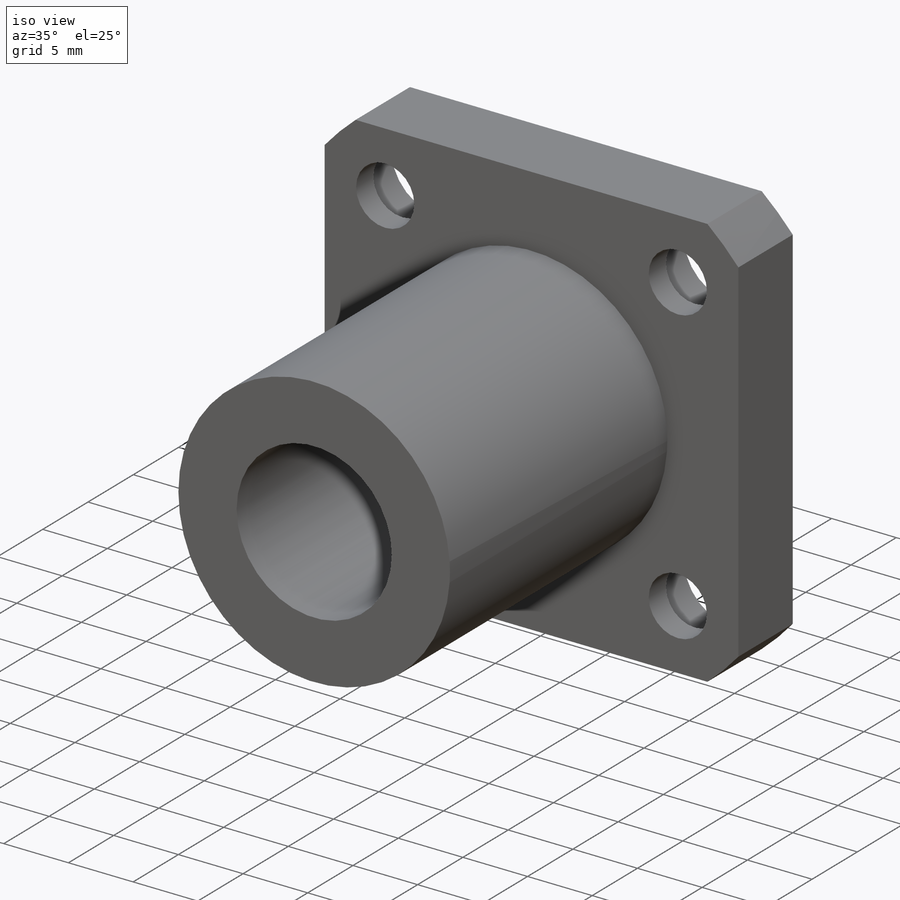
[diagram: iso view]
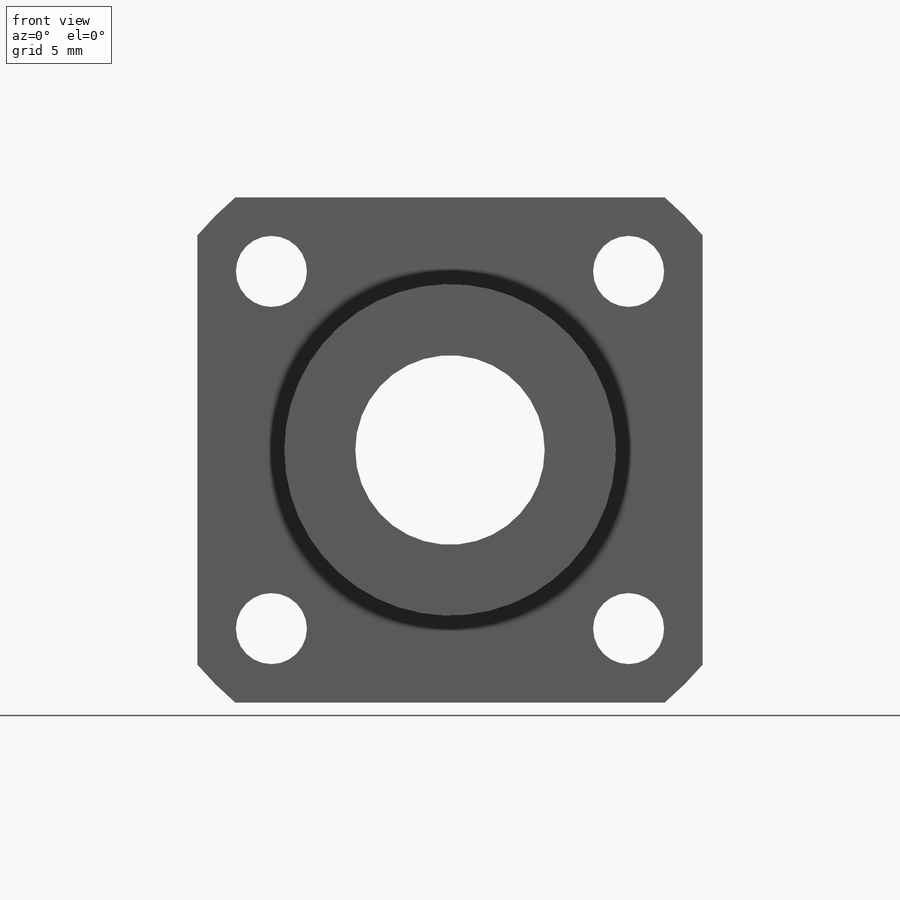
[diagram: front view]
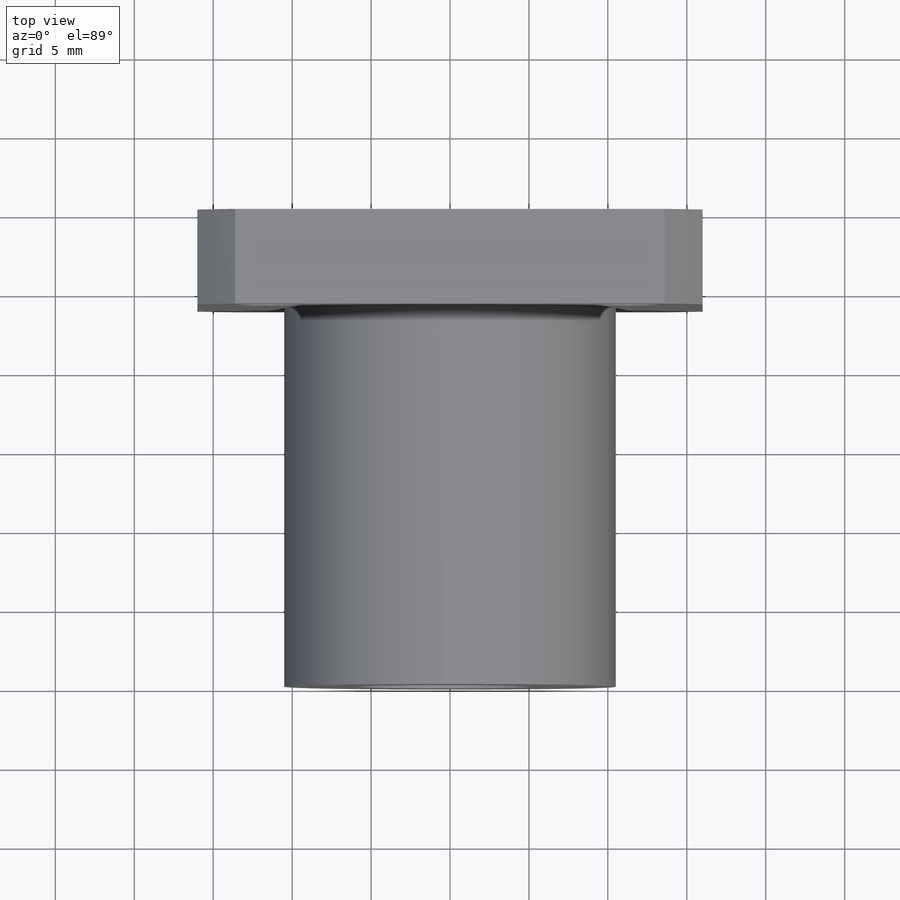
[diagram: top view]
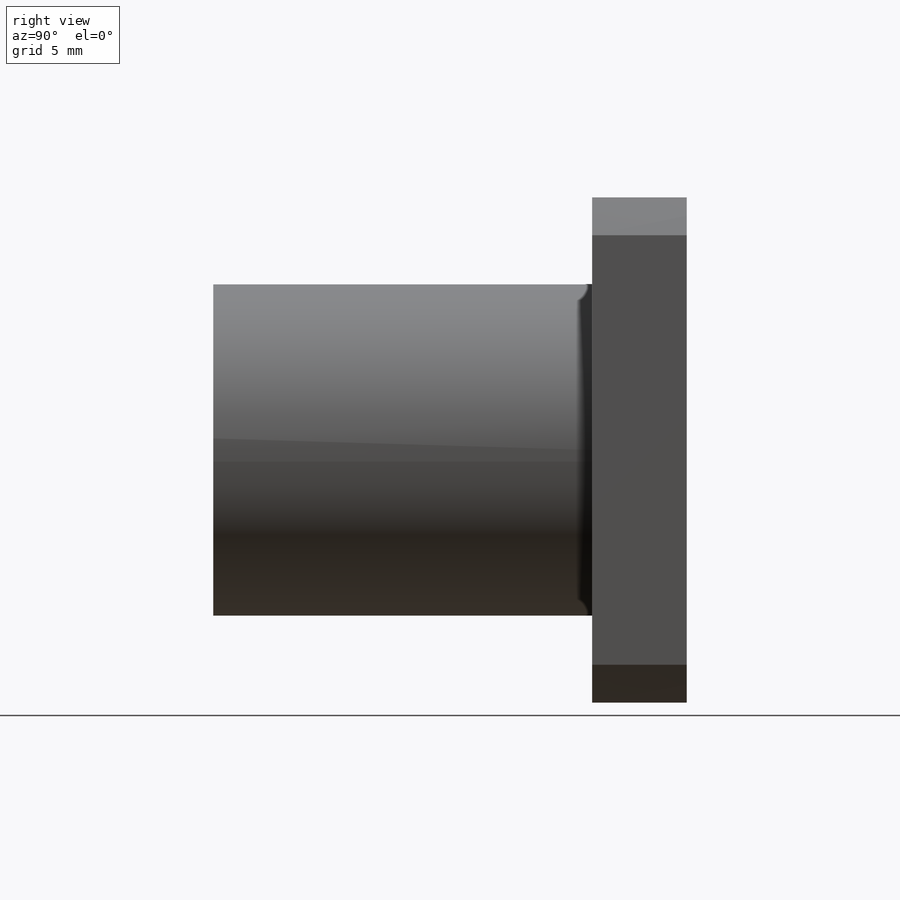
[diagram: right view]
SOLIDWORKS PART (.sldprt)
format: sldprt  version: not decoded by parser v0  size: 279,040 bytes
history: native  units: mm
features: sketch x5, plane x3, cut_extrude x3, extrude x2, material x1 (+10 scaffold rows collapsed)
feature tree (24):
  scaffold x10  (default folders/planes/origin — collapsed)
  material  "材质 <未指定>"
  plane  "前视基准面"
  plane  "上视基准面"
  plane  "右视基准面"
  sketch  "草图1"  dims[D5=42.0mm D6=42.0mm D1=32.0mm D2=32.0mm D3=16.0mm D4=16.0mm]
  extrude  "凸台-拉伸1"  Depth=6mm
  sketch  "草图2"  dims[D1=21.0mm]
  extrude  "凸台-拉伸2"  Depth=24mm
  sketch  "草图3"  dims[D1=12.0mm]
  cut_extrude  "切除-拉伸1"  Depth=30mm
  sketch  "草图4"  dims[D1=4.5mm D2=4.5mm D3=4.5mm D4=4.5mm]
  cut_extrude  "切除-拉伸2"  Depth=1.9mm
  sketch  "草图5"  dims[D1=7.5mm D2=7.5mm D3=7.5mm D4=7.5mm]
  cut_extrude  "切除-拉伸3"  Depth=4.1mm
decode coverage: 10 of 10 modeling features carry decoded parameters
note: suppression state not decoded; provenance and decode notes live in map.json
